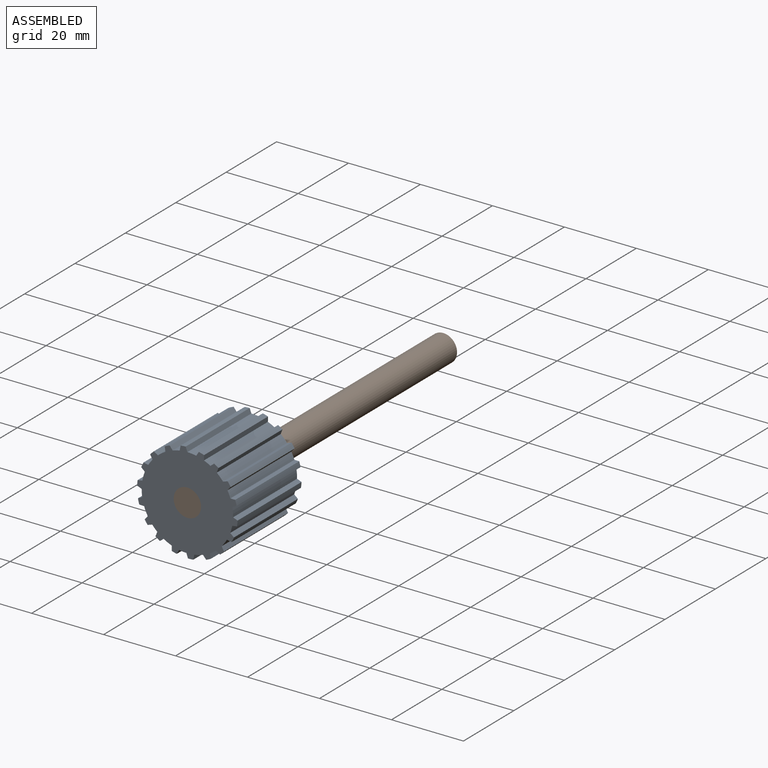
[diagram: assembled view]
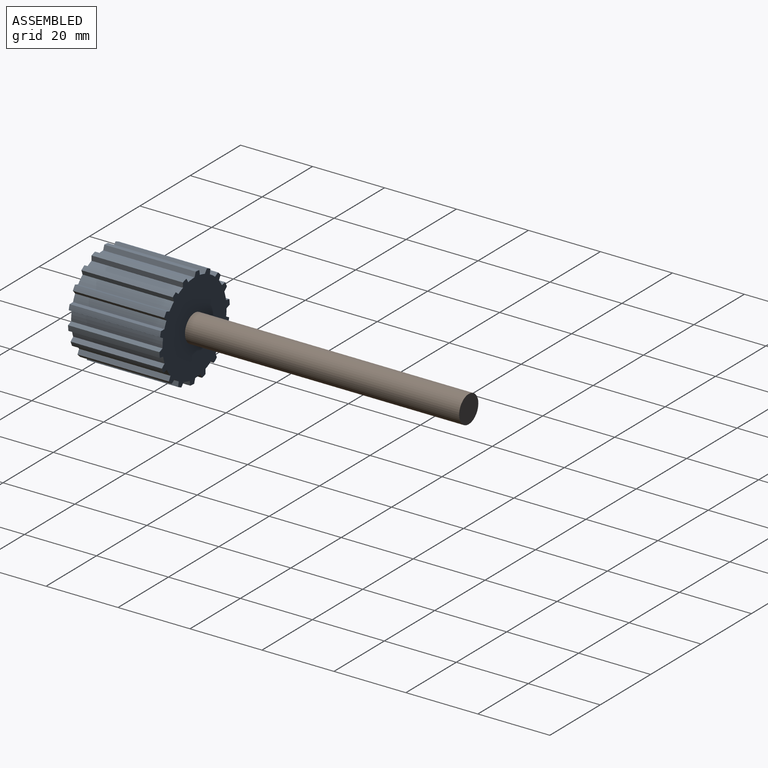
[diagram: assembled view, second angle]
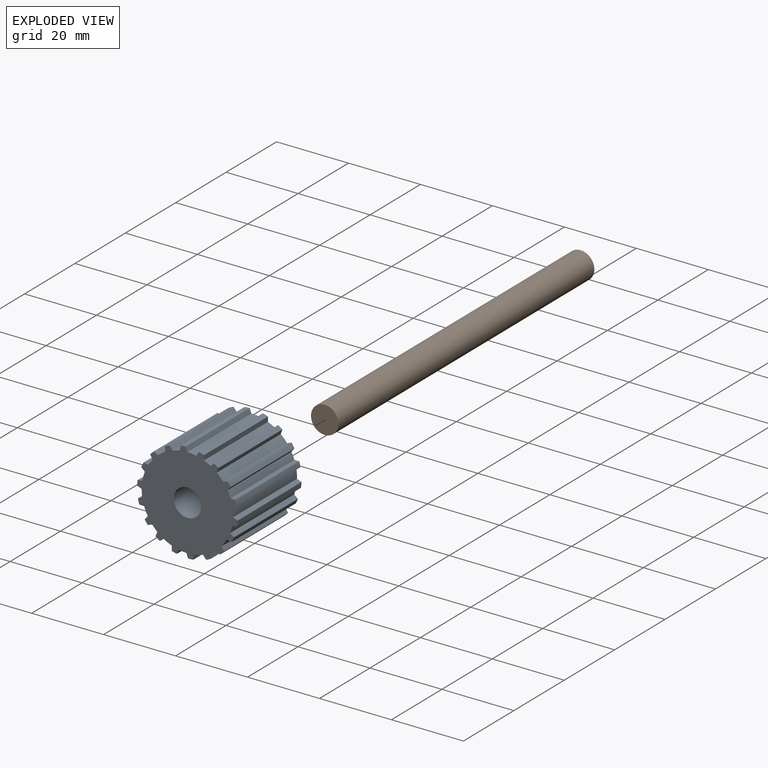
[diagram: exploded view]
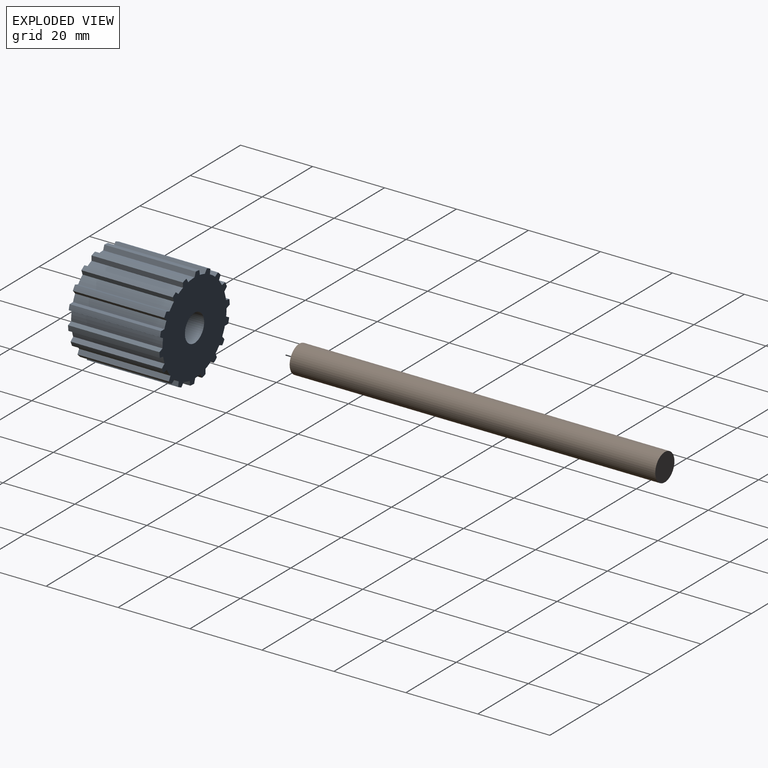
[diagram: exploded view, second angle]
ASSEMBLY  parts=2 mates=2
PART A: 75 faces, bbox 27.9x25.4x27.9 mm
  f0: plane 25.4x1.03mm, normal (-0.64,0,0.77), area 34.1mm2, adj f1,f71,f73,f74
  f1: cylinder r=12.7mm len=25.4mm, axis (0,1,0), area 51.3mm2, adj f0,f2,f73,f74
  f2: plane 25.4x1.34mm, normal (1,0,-0.02), area 34.1mm2, adj f1,f3,f73,f74
  f3: cylinder r=13.97mm len=25.4mm, axis (0,1,0), area 38.2mm2, adj f2,f4,f73,f74
  f4: plane 25.4x1.15mm, normal (-0.85,0,0.52), area 34.1mm2, adj f3,f5,f73,f74
  f5: cylinder r=12.7mm len=25.4mm, axis (0,1,0), area 63.6mm2, adj f4,f6,f73,f74
  f6: plane 25.4x1.26mm, normal (0.94,0,0.34), area 34.1mm2, adj f5,f7,f73,f74
  f7: cylinder r=13.97mm len=25.4mm, axis (0,1,0), area 36.4mm2, adj f6,f8,f73,f74
  f8: plane 25.4x1.32mm, normal (-0.98,0,0.18), area 34.1mm2, adj f7,f9,f73,f74
  f9: cylinder r=12.7mm len=25.4mm, axis (0,1,0), area 51.3mm2, adj f8,f10,f73,f74
  f10: plane 25.4x1.05mm, normal (0.78,0,0.63), area 34.1mm2, adj f9,f11,f73,f74
  f11: cylinder r=13.97mm len=25.4mm, axis (0,1,0), area 38.2mm2, adj f10,f12,f73,f74
  f12: plane 25.4x1.33mm, normal (-0.99,0,-0.15), area 34.1mm2, adj f11,f13,f73,f74
  f13: cylinder r=12.7mm len=25.4mm, axis (0,1,0), area 63.6mm2, adj f12,f14,f73,f74
  f14: plane 25.4x1.16mm, normal (0.5,0,0.87), area 34.1mm2, adj f13,f15,f73,f74
  f15: cylinder r=13.97mm len=25.4mm, axis (0,1,0), area 36.4mm2, adj f14,f16,f73,f74
  f16: plane 25.4x1.17mm, normal (-0.87,0,-0.49), area 34.1mm2, adj f15,f17,f73,f74
  f17: cylinder r=12.7mm len=25.4mm, axis (0,1,0), area 51.3mm2, adj f16,f18,f73,f74
  f18: plane 25.4x1.32mm, normal (0.19,0,0.98), area 34.1mm2, adj f17,f19,f73,f74
  f19: cylinder r=13.97mm len=25.4mm, axis (0,1,0), area 38.2mm2, adj f18,f20,f73,f74
  f20: plane 25.4x1.01mm, normal (-0.66,0,-0.75), area 34.1mm2, adj f19,f21,f73,f74
  f21: cylinder r=12.7mm len=25.4mm, axis (0,1,0), area 63.6mm2, adj f20,f22,f73,f74
  f22: plane 25.4x1.32mm, normal (-0.17,0,0.98), area 34.1mm2, adj f21,f23,f73,f74
  f23: cylinder r=13.97mm len=25.4mm, axis (0,1,0), area 36.4mm2, adj f22,f24,f73,f74
  f24: plane 25.4x1.26mm, normal (-0.35,0,-0.94), area 34.1mm2, adj f23,f25,f73,f74
  f25: cylinder r=12.7mm len=25.4mm, axis (0,1,0), area 51.3mm2, adj f24,f26,f73,f74
  f26: plane 25.4x1.18mm, normal (-0.48,0,0.88), area 34.1mm2, adj f25,f27,f73,f74
  f27: cylinder r=13.97mm len=25.4mm, axis (0,1,0), area 38.2mm2, adj f26,f28,f73,f74
  f28: plane 25.4x1.34mm, normal (-0.02,0,-1), area 34.1mm2, adj f27,f29,f73,f74
  f29: cylinder r=12.7mm len=25.4mm, axis (0,1,0), area 63.6mm2, adj f28,f30,f73,f74
  f30: plane 25.4x1.03mm, normal (-0.77,0,0.64), area 34.1mm2, adj f29,f31,f73,f74
  f31: cylinder r=13.97mm len=25.4mm, axis (0,1,0), area 36.4mm2, adj f30,f32,f73,f74
  f32: plane 25.4x1.27mm, normal (0.34,0,-0.94), area 34.1mm2, adj f31,f33,f73,f74
  f33: cylinder r=12.7mm len=25.4mm, axis (0,1,0), area 51.3mm2, adj f32,f34,f73,f74
  f34: plane 25.4x1.25mm, normal (-0.93,0,0.36), area 34.1mm2, adj f33,f35,f73,f74
  f35: cylinder r=13.97mm len=25.4mm, axis (0,1,0), area 38.2mm2, adj f34,f36,f73,f74
  f36: plane 25.4x1.05mm, normal (0.63,0,-0.78), area 34.1mm2, adj f35,f37,f73,f74
  f37: cylinder r=12.7mm len=25.4mm, axis (0,1,0), area 63.6mm2, adj f36,f38,f73,f74
  f38: plane 25.4x1.34mm, normal (-1,0,0), area 34.1mm2, adj f37,f39,f73,f74
  f39: cylinder r=13.97mm len=25.4mm, axis (0,1,0), area 36.4mm2, adj f38,f40,f73,f74
  f40: plane 25.4x1.16mm, normal (0.86,0,-0.51), area 34.1mm2, adj f39,f41,f73,f74
  f41: cylinder r=12.7mm len=25.4mm, axis (0,1,0), area 51.3mm2, adj f40,f42,f73,f74
  f42: plane 25.4x1.27mm, normal (-0.95,0,-0.32), area 34.1mm2, adj f41,f43,f73,f74
  f43: cylinder r=13.97mm len=25.4mm, axis (0,1,0), area 38.2mm2, adj f42,f44,f73,f74
  f44: plane 25.4x1.32mm, normal (0.98,0,-0.2), area 34.1mm2, adj f43,f45,f73,f74
  f45: cylinder r=12.7mm len=25.4mm, axis (0,1,0), area 63.6mm2, adj f44,f46,f73,f74
  f46: plane 25.4x1.03mm, normal (-0.77,0,-0.64), area 34.1mm2, adj f45,f47,f73,f74
  f47: cylinder r=13.97mm len=25.4mm, axis (0,1,0), area 36.4mm2, adj f46,f48,f73,f74
  f48: plane 25.4x1.32mm, normal (0.99,0,0.17), area 34.1mm2, adj f47,f49,f73,f74
  f49: cylinder r=12.7mm len=25.4mm, axis (0,1,0), area 51.3mm2, adj f48,f50,f73,f74
  f50: plane 25.4x1.15mm, normal (-0.52,0,-0.86), area 34.1mm2, adj f49,f51,f73,f74
  f51: cylinder r=13.97mm len=25.4mm, axis (0,1,0), area 38.2mm2, adj f50,f52,f73,f74
  f52: plane 25.4x1.18mm, normal (0.88,0,0.48), area 34.1mm2, adj f51,f53,f73,f74
  f53: cylinder r=12.7mm len=25.4mm, axis (0,1,0), area 63.6mm2, adj f52,f54,f73,f74
  f54: plane 25.4x1.32mm, normal (-0.17,0,-0.98), area 34.1mm2, adj f53,f55,f73,f74
  f55: cylinder r=13.97mm len=25.4mm, axis (0,1,0), area 36.4mm2, adj f54,f56,f73,f74
  f56: plane 25.4x1.02mm, normal (0.65,0,0.76), area 34.1mm2, adj f55,f57,f73,f74
  f57: cylinder r=12.7mm len=25.4mm, axis (0,1,0), area 51.3mm2, adj f56,f58,f73,f74
  f58: plane 25.4x1.33mm, normal (0.15,0,-0.99), area 34.1mm2, adj f57,f59,f73,f74
  f59: cylinder r=13.97mm len=25.4mm, axis (0,1,0), area 38.2mm2, adj f58,f60,f73,f74
  f60: plane 25.4x1.25mm, normal (0.36,0,0.93), area 34.1mm2, adj f59,f61,f73,f74
  f61: cylinder r=12.7mm len=25.4mm, axis (0,1,0), area 63.6mm2, adj f60,f62,f73,f74
  f62: plane 25.4x1.16mm, normal (0.5,0,-0.87), area 34.1mm2, adj f61,f63,f73,f74
  f63: cylinder r=13.97mm len=25.4mm, axis (0,1,0), area 36.4mm2, adj f62,f64,f73,f74
  f64: plane 25.4x1.34mm, normal (0.01,0,1), area 34.1mm2, adj f63,f65,f73,f74
  f65: cylinder r=12.7mm len=25.4mm, axis (0,1,0), area 51.3mm2, adj f64,f66,f73,f74
  f66: plane 25.4x1.01mm, normal (0.75,0,-0.66), area 34.1mm2, adj f65,f67,f73,f74
  f67: cylinder r=13.97mm len=25.4mm, axis (0,1,0), area 38.2mm2, adj f66,f68,f73,f74
  f68: plane 25.4x1.27mm, normal (-0.32,0,0.95), area 34.1mm2, adj f67,f69,f73,f74
  f69: cylinder r=12.7mm len=25.4mm, axis (0,1,0), area 63.6mm2, adj f68,f70,f73,f74
  f70: plane 25.4x1.26mm, normal (0.94,0,-0.34), area 34.1mm2, adj f69,f71,f73,f74
  f71: cylinder r=13.97mm len=25.4mm, axis (0,1,0), area 36.4mm2, adj f0,f70,f73,f74
  f72: cylinder r=3.81mm len=25.4mm, axis (0,1,0), area 608mm2, adj f73,f74
  f73: plane 27.93x27.91mm, normal (0,-1,0), area 502.7mm2, adj f0,f1,f2,f3,f4,f5,f6,f7
  f74: plane 27.93x27.91mm, normal (0,1,0), area 502.7mm2, adj f0,f1,f2,f3,f4,f5,f6,f7
PART B: 3 faces, bbox 7.6x101.6x7.6 mm
  f0: cylinder r=3.81mm len=101.6mm, axis (0,1,0), area 2432.2mm2, adj f1,f2
  f1: plane 7.62x7.62mm, normal (0,-1,0), area 45.6mm2, adj f0
  f2: plane 7.62x7.62mm, normal (0,1,0), area 45.6mm2, adj f0
PLACE A t=(-5.92,7.1,-6.09)mm
PLACE B t=(-5.92,83.3,-6.09)mm
MATE planar B.f0 <-> A.f73  axis (0,-1,0) through (-5.92,-18.3,-6.09)mm
MATE cylindrical A.f1 <-> B.f0  axis (0,1,0) through (-5.92,-5.6,-6.09)mm
